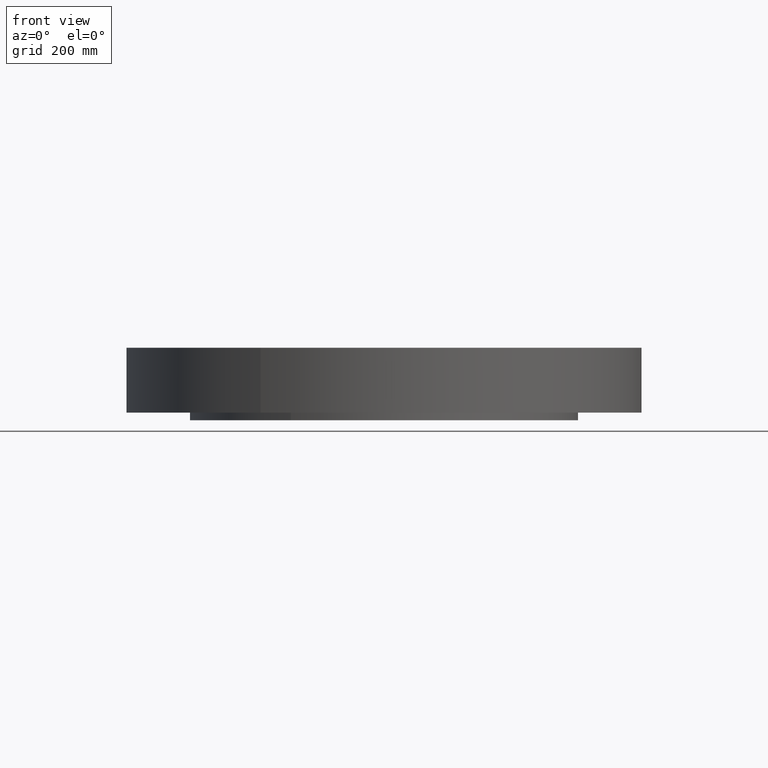
[diagram: clean part render]
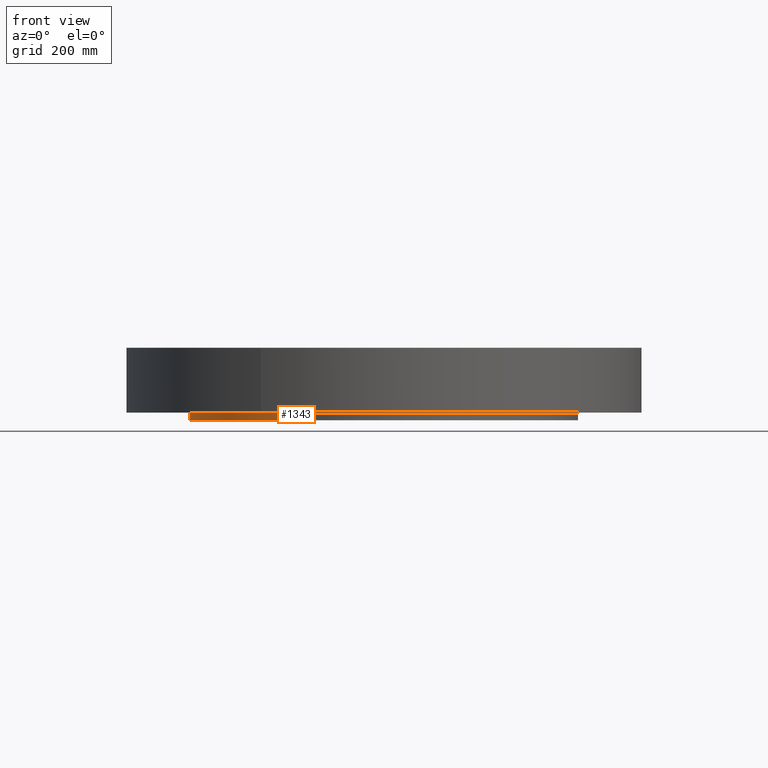
[diagram: same view with one face highlighted and labeled with its STEP entity id]
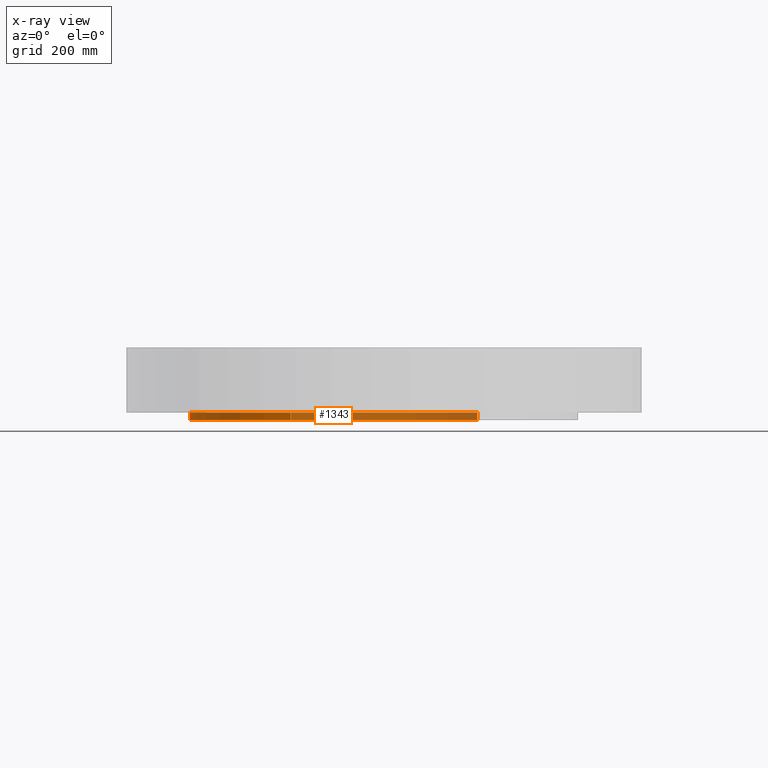
[diagram: x-ray of the same camera — body ghosted, the highlighted face saturated]
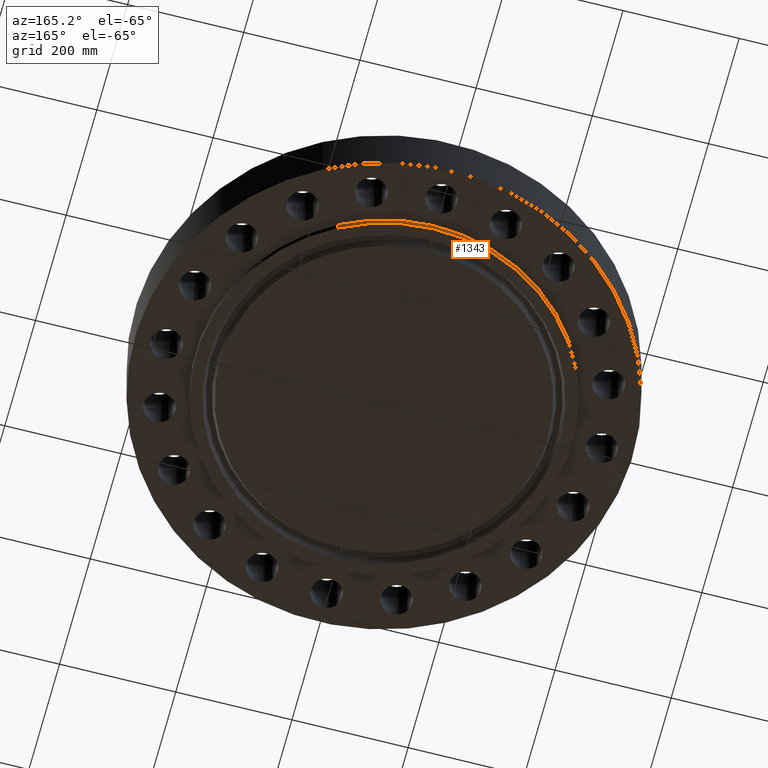
[diagram: same view with one face highlighted and labeled with its STEP entity id]
A machine part, front view. The second image highlights one B-rep face of the part: STEP entity #1343.
The next image is the same camera in x-ray: the body ghosted, the highlighted face saturated — about 65% of this face is hidden behind the body in this view.
A second angle (auxiliary view) of the same face is appended — the face is thin or edge-on in the first view.
In plain terms, the highlighted cylindrical surface (partial cylindrical patch) has radius 323.85 mm, axis along (0, 0, -1).
Its self-contained STEP definition (entity closure, byte-faithful):
#70=AXIS2_PLACEMENT_3D('Circle Axis2P3D',#68,#69,$) ;
#1231=AXIS2_PLACEMENT_3D('Circle Axis2P3D',#1229,#1230,$) ;
#1318=AXIS2_PLACEMENT_3D('Cylinder Axis2P3D',#1315,#1316,#1317) ;
#63=CARTESIAN_POINT('Vertex',(6.11267561723,11.1891776641,-0.500000000002)) ;
#65=CARTESIAN_POINT('Vertex',(-6.11267561723,-11.1891776641,-0.500000000002)) ;
#68=CARTESIAN_POINT('Axis2P3D Location',(0.,0.,-0.500000000002)) ;
#1224=CARTESIAN_POINT('Vertex',(6.11267561723,11.1891776641,1.39870617276E-015)) ;
#1226=CARTESIAN_POINT('Vertex',(-6.11267561723,-11.1891776641,1.39870617276E-015)) ;
#1229=CARTESIAN_POINT('Axis2P3D Location',(0.,0.,0.)) ;
#1315=CARTESIAN_POINT('Axis2P3D Location',(0.,0.,1.87500000001)) ;
#1320=CARTESIAN_POINT('Line Origine',(6.11267561723,11.1891776641,-0.250000000001)) ;
#1325=CARTESIAN_POINT('Line Origine',(-6.11267561723,-11.1891776641,-0.250000000001)) ;
#69=DIRECTION('Axis2P3D Direction',(0.,0.,-0.0393700787402)) ;
#1230=DIRECTION('Axis2P3D Direction',(0.,0.,-0.0393700787402)) ;
#1316=DIRECTION('Axis2P3D Direction',(0.,0.,-0.0393700787402)) ;
#1317=DIRECTION('Axis2P3D XDirection',(-0.0188750212049,-0.0345504945626,0.)) ;
#1321=DIRECTION('Vector Direction',(0.,0.,-0.0393700787402)) ;
#1326=DIRECTION('Vector Direction',(0.,0.,-0.0393700787402)) ;
#1322=VECTOR('Line Direction',#1321,0.0393700787402) ;
#1327=VECTOR('Line Direction',#1326,0.0393700787402) ;
#1338=ORIENTED_EDGE('',*,*,#72,.F.) ;
#1339=ORIENTED_EDGE('',*,*,#1329,.T.) ;
#1340=ORIENTED_EDGE('',*,*,#1233,.T.) ;
#1341=ORIENTED_EDGE('',*,*,#1324,.F.) ;
#1343=ADVANCED_FACE('PartBody',(#1342),#1319,.T.) ;
#71=CIRCLE('generated circle',#70,12.7500000001) ;
#1232=CIRCLE('generated circle',#1231,12.7500000001) ;
#1319=CYLINDRICAL_SURFACE('generated cylinder',#1318,12.7500000001) ;
#72=EDGE_CURVE('',#66,#64,#71,.T.) ;
#1233=EDGE_CURVE('',#1227,#1225,#1232,.T.) ;
#1324=EDGE_CURVE('',#64,#1225,#1323,.F.) ;
#1329=EDGE_CURVE('',#66,#1227,#1328,.F.) ;
#1337=EDGE_LOOP('',(#1338,#1339,#1340,#1341)) ;
#1342=FACE_OUTER_BOUND('',#1337,.T.) ;
#1323=LINE('Line',#1320,#1322) ;
#1328=LINE('Line',#1325,#1327) ;
#64=VERTEX_POINT('',#63) ;
#66=VERTEX_POINT('',#65) ;
#1225=VERTEX_POINT('',#1224) ;
#1227=VERTEX_POINT('',#1226) ;